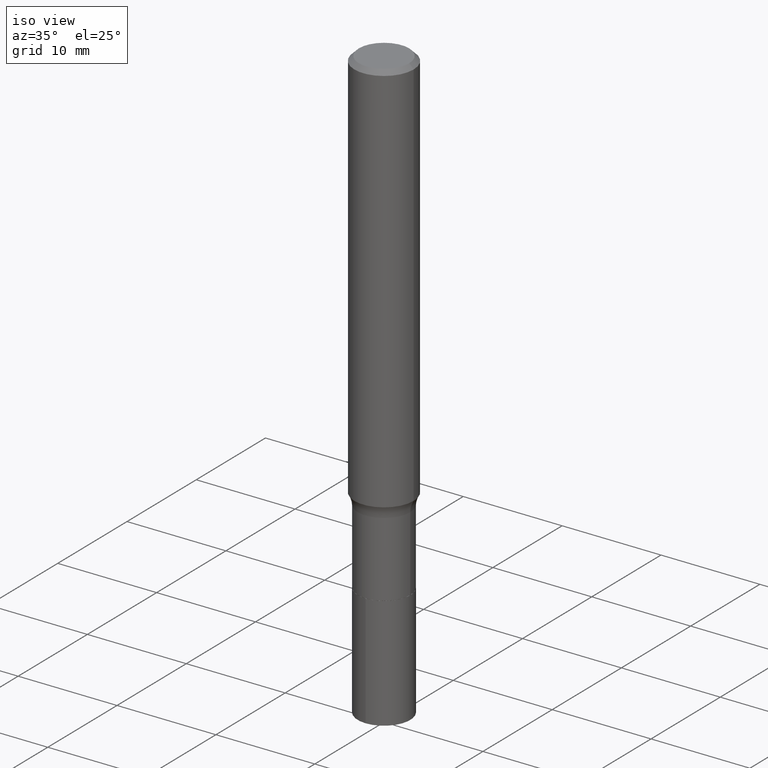
[diagram: clean part render]
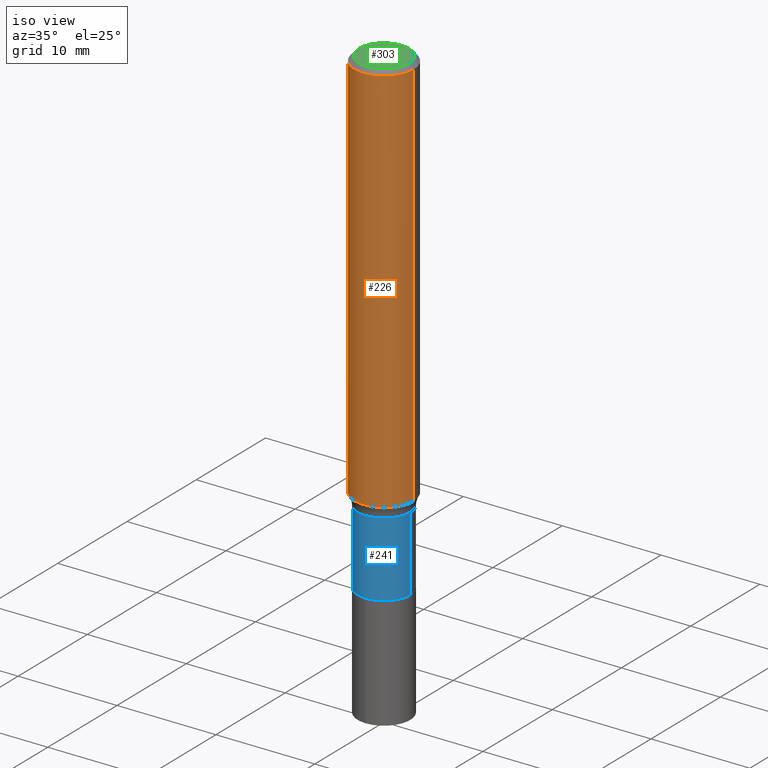
[diagram: same view with three faces highlighted in distinct colors, each labeled with its STEP entity id]
A machine part, iso view with three faces highlighted in distinct colors.
Their STEP definitions:

[orange] entity #226 — the highlighted cylindrical surface (edge-blend (fillet) strip) has radius 2.9997 mm, axis along (-0, 0, 1).
#5 = CARTESIAN_POINT ( 'NONE',  ( 4.332147990156996744E-31, -6.185159191760670395E-17, -0.01771500000000010913 ) ) ;
#7 = CARTESIAN_POINT ( 'NONE',  ( -0.1180999999999999966, -1.932900039203968649E-15, -0.01771500000000010913 ) ) ;
#20 = VECTOR ( 'NONE', #31, 39.37007874015748143 ) ;
#27 = CIRCLE ( 'NONE', #348, 0.1181000000000001909 ) ;
#31 = DIRECTION ( 'NONE',  ( -2.445468806185136877E-29, 3.491481338843145188E-15, 1.000000000000000000 ) ) ;
#34 = CARTESIAN_POINT ( 'NONE',  ( 3.839823590373551639E-29, -5.482250428355689861E-15, -1.570178928744370150 ) ) ;
#36 = EDGE_CURVE ( 'NONE', #208, #425, #259, .T. ) ;
#39 = DIRECTION ( 'NONE',  ( -2.445468806185136597E-29, 3.491481338843145583E-15, 1.000000000000000000 ) ) ;
#71 = ORIENTED_EDGE ( 'NONE', *, *, #121, .T. ) ;
#108 = CARTESIAN_POINT ( 'NONE',  ( -0.1181000000000001077, 8.391509709326790846E-16, -5.809262341591049389E-30 ) ) ;
#114 = DIRECTION ( 'NONE',  ( 1.000000000000000000, -6.982962677686266711E-15, 0.000000000000000000 ) ) ;
#115 = CIRCLE ( 'NONE', #379, 0.1180999999999999966 ) ;
#121 = EDGE_CURVE ( 'NONE', #334, #208, #27, .T. ) ;
#138 = VERTEX_POINT ( 'NONE', #7 ) ;
#156 = CARTESIAN_POINT ( 'NONE',  ( -0.1181000000000002048, -4.643099457423009297E-15, -1.570178928744370150 ) ) ;
#158 = VECTOR ( 'NONE', #399, 39.37007874015748143 ) ;
#182 = CARTESIAN_POINT ( 'NONE',  ( 0.1181000000000001077, -8.246878922347488542E-16, 5.758764772215005345E-30 ) ) ;
#196 = DIRECTION ( 'NONE',  ( -2.445468806185136597E-29, 3.491481338843145583E-15, 1.000000000000000000 ) ) ;
#206 = EDGE_CURVE ( 'NONE', #334, #138, #438, .T. ) ;
#208 = VERTEX_POINT ( 'NONE', #365 ) ;
#221 = DIRECTION ( 'NONE',  ( -2.445468806185136597E-29, 3.491481338843145583E-15, 1.000000000000000000 ) ) ;
#223 = EDGE_CURVE ( 'NONE', #138, #425, #115, .T. ) ;
#226 = ADVANCED_FACE ( 'NONE', ( #261 ), #406, .T. ) ;
#230 = DIRECTION ( 'NONE',  ( 1.000000000000000000, -6.982962677686266711E-15, 4.876176775795935793E-29 ) ) ;
#259 = LINE ( 'NONE', #182, #20 ) ;
#261 = FACE_OUTER_BOUND ( 'NONE', #454, .T. ) ;
#278 = CARTESIAN_POINT ( 'NONE',  ( 0.1180999999999999966, -8.865394841523547570E-16, -0.01771500000000010913 ) ) ;
#307 = ORIENTED_EDGE ( 'NONE', *, *, #36, .T. ) ;
#334 = VERTEX_POINT ( 'NONE', #156 ) ;
#338 = ORIENTED_EDGE ( 'NONE', *, *, #223, .F. ) ;
#347 = ORIENTED_EDGE ( 'NONE', *, *, #206, .F. ) ;
#348 = AXIS2_PLACEMENT_3D ( 'NONE', #34, #221, #407 ) ;
#365 = CARTESIAN_POINT ( 'NONE',  ( 0.1181000000000002048, -6.306938320590438124E-15, -1.570178928744370150 ) ) ;
#370 = AXIS2_PLACEMENT_3D ( 'NONE', #412, #196, #230 ) ;
#379 = AXIS2_PLACEMENT_3D ( 'NONE', #5, #39, #114 ) ;
#399 = DIRECTION ( 'NONE',  ( -2.445468806185136877E-29, 3.491481338843145188E-15, 1.000000000000000000 ) ) ;
#406 = CYLINDRICAL_SURFACE ( 'NONE', #370, 0.1181000000000001077 ) ;
#407 = DIRECTION ( 'NONE',  ( 1.000000000000000000, -6.982962677686269077E-15, 0.000000000000000000 ) ) ;
#412 = CARTESIAN_POINT ( 'NONE',  ( 0.000000000000000000, 0.000000000000000000, 0.000000000000000000 ) ) ;
#425 = VERTEX_POINT ( 'NONE', #278 ) ;
#438 = LINE ( 'NONE', #108, #158 ) ;
#454 = EDGE_LOOP ( 'NONE', ( #347, #71, #307, #338 ) ) ;

[blue] entity #241 — the highlighted cylindrical surface (edge-blend (fillet) strip) has radius 2.6543 mm, axis along (-0, 0, 1).
#10 = DIRECTION ( 'NONE',  ( -2.445468806185136877E-29, 3.491481338843145188E-15, 1.000000000000000000 ) ) ;
#30 = EDGE_LOOP ( 'NONE', ( #343, #233, #320, #140 ) ) ;
#52 = VECTOR ( 'NONE', #10, 39.37007874015748143 ) ;
#60 = AXIS2_PLACEMENT_3D ( 'NONE', #436, #254, #225 ) ;
#70 = CARTESIAN_POINT ( 'NONE',  ( 0.1044999999999999540, -6.367763665782127275E-15, -1.614800000000000457 ) ) ;
#80 = CARTESIAN_POINT ( 'NONE',  ( 0.1044999999999999679, -7.297195998182146228E-16, 5.095604730706752119E-30 ) ) ;
#85 = DIRECTION ( 'NONE',  ( -2.445468806185136597E-29, 3.491481338843145583E-15, 1.000000000000000000 ) ) ;
#92 = EDGE_CURVE ( 'NONE', #345, #395, #432, .T. ) ;
#109 = AXIS2_PLACEMENT_3D ( 'NONE', #445, #266, #189 ) ;
#117 = CARTESIAN_POINT ( 'NONE',  ( -0.1044999999999999540, -5.415583052515295399E-15, -1.614800000000000457 ) ) ;
#124 = EDGE_CURVE ( 'NONE', #174, #395, #409, .T. ) ;
#137 = CARTESIAN_POINT ( 'NONE',  ( -0.1044999999999999818, -5.415583052515295399E-15, -1.912700000000000289 ) ) ;
#140 = ORIENTED_EDGE ( 'NONE', *, *, #124, .F. ) ;
#141 = EDGE_CURVE ( 'NONE', #413, #174, #328, .T. ) ;
#174 = VERTEX_POINT ( 'NONE', #117 ) ;
#186 = CIRCLE ( 'NONE', #109, 0.1045000000000000095 ) ;
#187 = FACE_OUTER_BOUND ( 'NONE', #30, .T. ) ;
#189 = DIRECTION ( 'NONE',  ( 1.000000000000000000, -6.982962677686262766E-15, 0.000000000000000000 ) ) ;
#215 = CARTESIAN_POINT ( 'NONE',  ( -0.1044999999999999679, 7.425171588693044663E-16, -5.140287169316375031E-30 ) ) ;
#218 = DIRECTION ( 'NONE',  ( -2.445468806185136877E-29, 3.491481338843145188E-15, 1.000000000000000000 ) ) ;
#225 = DIRECTION ( 'NONE',  ( 1.000000000000000000, -6.982962677686266711E-15, 0.000000000000000000 ) ) ;
#233 = ORIENTED_EDGE ( 'NONE', *, *, #331, .T. ) ;
#241 = ADVANCED_FACE ( 'NONE', ( #187 ), #448, .T. ) ;
#254 = DIRECTION ( 'NONE',  ( -2.445468806185136597E-29, 3.491481338843145583E-15, 1.000000000000000000 ) ) ;
#266 = DIRECTION ( 'NONE',  ( -2.445468806185136597E-29, 3.491481338843145583E-15, 1.000000000000000000 ) ) ;
#295 = AXIS2_PLACEMENT_3D ( 'NONE', #451, #85, #342 ) ;
#315 = VECTOR ( 'NONE', #218, 39.37007874015748143 ) ;
#320 = ORIENTED_EDGE ( 'NONE', *, *, #92, .T. ) ;
#328 = LINE ( 'NONE', #215, #315 ) ;
#331 = EDGE_CURVE ( 'NONE', #413, #345, #186, .T. ) ;
#342 = DIRECTION ( 'NONE',  ( 1.000000000000000000, -6.982962677686266711E-15, 4.876176775795936353E-29 ) ) ;
#343 = ORIENTED_EDGE ( 'NONE', *, *, #141, .F. ) ;
#345 = VERTEX_POINT ( 'NONE', #394 ) ;
#394 = CARTESIAN_POINT ( 'NONE',  ( 0.1045000000000000095, -7.407875956623500911E-15, -1.912700000000000289 ) ) ;
#395 = VERTEX_POINT ( 'NONE', #70 ) ;
#409 = CIRCLE ( 'NONE', #60, 0.1044999999999999540 ) ;
#413 = VERTEX_POINT ( 'NONE', #137 ) ;
#432 = LINE ( 'NONE', #80, #52 ) ;
#436 = CARTESIAN_POINT ( 'NONE',  ( 3.948943028227760097E-29, -5.638044065963912751E-15, -1.614800000000000457 ) ) ;
#445 = CARTESIAN_POINT ( 'NONE',  ( 4.677448185590311983E-29, -6.678156356805286387E-15, -1.912700000000000289 ) ) ;
#448 = CYLINDRICAL_SURFACE ( 'NONE', #295, 0.1044999999999999679 ) ;
#451 = CARTESIAN_POINT ( 'NONE',  ( 0.000000000000000000, 0.000000000000000000, 0.000000000000000000 ) ) ;

[green] entity #303 — the highlighted planar face has unit normal (0, -0, -1).
#14 = ORIENTED_EDGE ( 'NONE', *, *, #376, .T. ) ;
#24 = DIRECTION ( 'NONE',  ( 1.000000000000000000, -6.982962677686266711E-15, 4.875668750515085695E-29 ) ) ;
#89 = CARTESIAN_POINT ( 'NONE',  ( 3.507850874923593654E-46, -5.008281372579124849E-32, -1.434428795841294606E-17 ) ) ;
#93 = PLANE ( 'NONE',  #441 ) ;
#103 = CARTESIAN_POINT ( 'NONE',  ( 0.1003850000000000159, -7.803837484803599345E-16, -2.868857591682071522E-17 ) ) ;
#119 = DIRECTION ( 'NONE',  ( 2.438088387897960049E-29, -3.491481338843145188E-15, -1.000000000000000000 ) ) ;
#128 = DIRECTION ( 'NONE',  ( -2.445468806185136597E-29, 3.491481338843145583E-15, 1.000000000000000000 ) ) ;
#132 = DIRECTION ( 'NONE',  ( 1.000000000000000000, -6.982962677686266711E-15, 4.875668750515085695E-29 ) ) ;
#136 = AXIS2_PLACEMENT_3D ( 'NONE', #249, #456, #24 ) ;
#157 = ORIENTED_EDGE ( 'NONE', *, *, #357, .T. ) ;
#175 = VERTEX_POINT ( 'NONE', #296 ) ;
#209 = EDGE_LOOP ( 'NONE', ( #157, #14 ) ) ;
#249 = CARTESIAN_POINT ( 'NONE',  ( 7.015701749847187307E-46, -1.001656274515824970E-31, -2.868857591682589212E-17 ) ) ;
#271 = FACE_OUTER_BOUND ( 'NONE', #209, .T. ) ;
#296 = CARTESIAN_POINT ( 'NONE',  ( -0.1003850000000000159, 7.319105043583386689E-16, -2.868857591683090262E-17 ) ) ;
#303 = ADVANCED_FACE ( 'NONE', ( #271 ), #93, .F. ) ;
#335 = DIRECTION ( 'NONE',  ( -1.000000000000000000, 6.982962677686265922E-15, -4.876176775795935793E-29 ) ) ;
#357 = EDGE_CURVE ( 'NONE', #175, #420, #381, .T. ) ;
#376 = EDGE_CURVE ( 'NONE', #420, #175, #397, .T. ) ;
#381 = CIRCLE ( 'NONE', #390, 0.1003850000000000159 ) ;
#386 = CARTESIAN_POINT ( 'NONE',  ( 7.015701749847187307E-46, -1.001656274515824970E-31, -2.868857591682589212E-17 ) ) ;
#390 = AXIS2_PLACEMENT_3D ( 'NONE', #386, #128, #132 ) ;
#397 = CIRCLE ( 'NONE', #136, 0.1003850000000000159 ) ;
#420 = VERTEX_POINT ( 'NONE', #103 ) ;
#441 = AXIS2_PLACEMENT_3D ( 'NONE', #89, #119, #335 ) ;
#456 = DIRECTION ( 'NONE',  ( -2.445468806185136597E-29, 3.491481338843145583E-15, 1.000000000000000000 ) ) ;